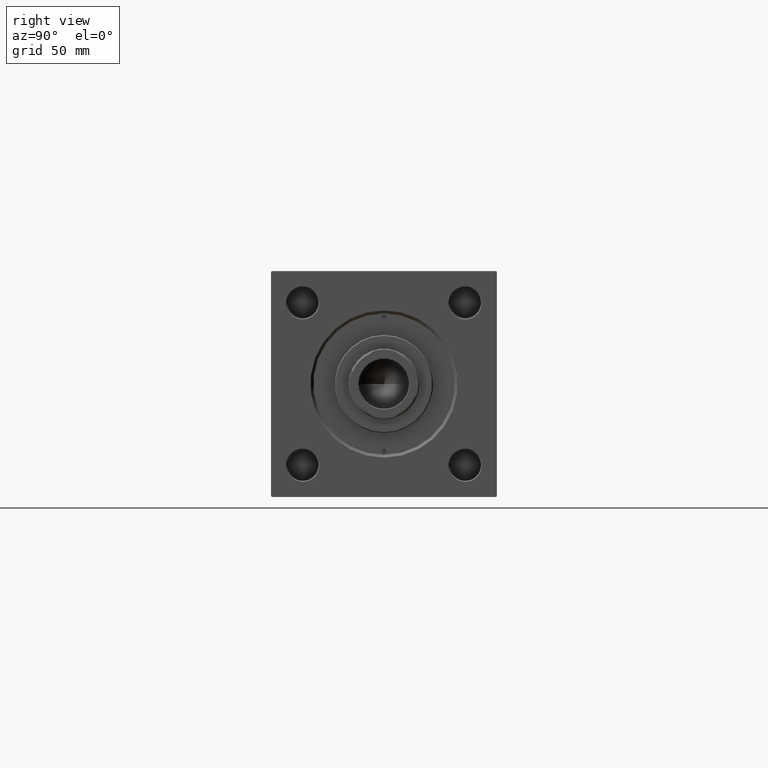
[diagram: clean part render]
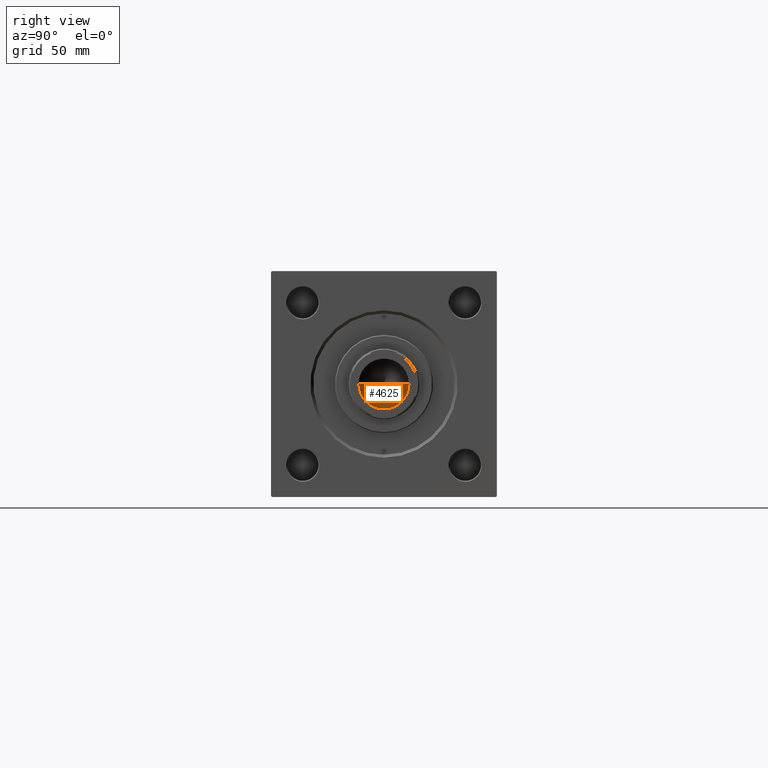
[diagram: same view with one face highlighted and labeled with its STEP entity id]
A machine part, right view. The second image highlights one B-rep face of the part: STEP entity #4625.
In plain terms, the highlighted conical surface has half-angle 59 deg.
Its self-contained STEP definition (entity closure, byte-faithful):
#1344 = AXIS2_PLACEMENT_3D ( 'NONE', #31819, #38085, #12295 ) ;
#3922 = EDGE_CURVE ( 'NONE', #27403, #14709, #39420, .T. ) ;
#4625 = ADVANCED_FACE ( 'NONE', ( #18093 ), #34651, .F. ) ;
#5190 = CARTESIAN_POINT ( 'NONE',  ( -12.74999999999998934, 1.561424668912873928E-15, 226.0000000000000284 ) ) ;
#7590 = ORIENTED_EDGE ( 'NONE', *, *, #3922, .T. ) ;
#8506 = CARTESIAN_POINT ( 'NONE',  ( -1.410643066818227497E-14, 0.000000000000000000, 218.3390271073986071 ) ) ;
#9037 = ORIENTED_EDGE ( 'NONE', *, *, #32617, .F. ) ;
#9122 = ORIENTED_EDGE ( 'NONE', *, *, #15262, .T. ) ;
#9750 = VECTOR ( 'NONE', #46223, 1000.000000000000000 ) ;
#9886 = EDGE_LOOP ( 'NONE', ( #9037, #7590, #9122 ) ) ;
#10379 = DIRECTION ( 'NONE',  ( 1.000000000000000000, 0.000000000000000000, 0.000000000000000000 ) ) ;
#12014 = CIRCLE ( 'NONE', #1344, 12.74999999999998934 ) ;
#12295 = DIRECTION ( 'NONE',  ( 1.000000000000000000, 0.000000000000000000, 0.000000000000000000 ) ) ;
#14605 = CARTESIAN_POINT ( 'NONE',  ( -12.74999999999998934, 1.561424668912873928E-15, 226.0000000000000284 ) ) ;
#14709 = VERTEX_POINT ( 'NONE', #28421 ) ;
#15262 = EDGE_CURVE ( 'NONE', #14709, #24795, #12014, .T. ) ;
#18093 = FACE_OUTER_BOUND ( 'NONE', #9886, .T. ) ;
#24487 = DIRECTION ( 'NONE',  ( 0.8571673007021110013, 0.000000000000000000, 0.5150380749100563760 ) ) ;
#24795 = VERTEX_POINT ( 'NONE', #5190 ) ;
#27403 = VERTEX_POINT ( 'NONE', #8506 ) ;
#28421 = CARTESIAN_POINT ( 'NONE',  ( 12.74999999999998934, 0.000000000000000000, 226.0000000000000284 ) ) ;
#29420 = DIRECTION ( 'NONE',  ( -0.000000000000000000, -0.000000000000000000, 1.000000000000000000 ) ) ;
#29784 = LINE ( 'NONE', #14605, #9750 ) ;
#31819 = CARTESIAN_POINT ( 'NONE',  ( 0.000000000000000000, 0.000000000000000000, 226.0000000000000284 ) ) ;
#32617 = EDGE_CURVE ( 'NONE', #27403, #24795, #29784, .T. ) ;
#32967 = VECTOR ( 'NONE', #24487, 1000.000000000000000 ) ;
#34651 = CONICAL_SURFACE ( 'NONE', #42040, 12.74999999999998934, 1.029744258676651869 ) ;
#38085 = DIRECTION ( 'NONE',  ( -0.000000000000000000, -0.000000000000000000, 1.000000000000000000 ) ) ;
#39420 = LINE ( 'NONE', #44277, #32967 ) ;
#42040 = AXIS2_PLACEMENT_3D ( 'NONE', #49440, #29420, #10379 ) ;
#44277 = CARTESIAN_POINT ( 'NONE',  ( 12.74999999999998934, 0.000000000000000000, 226.0000000000000284 ) ) ;
#46223 = DIRECTION ( 'NONE',  ( -0.8571673007021110013, 1.049727191138617093E-16, 0.5150380749100563760 ) ) ;
#49440 = CARTESIAN_POINT ( 'NONE',  ( 0.000000000000000000, 0.000000000000000000, 226.0000000000000284 ) ) ;